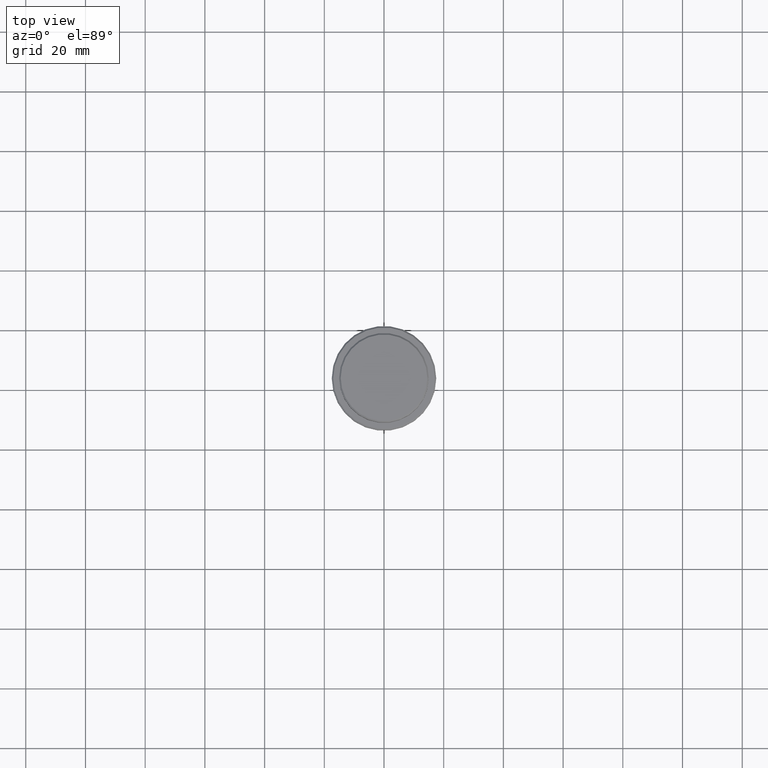
[diagram: clean part render]
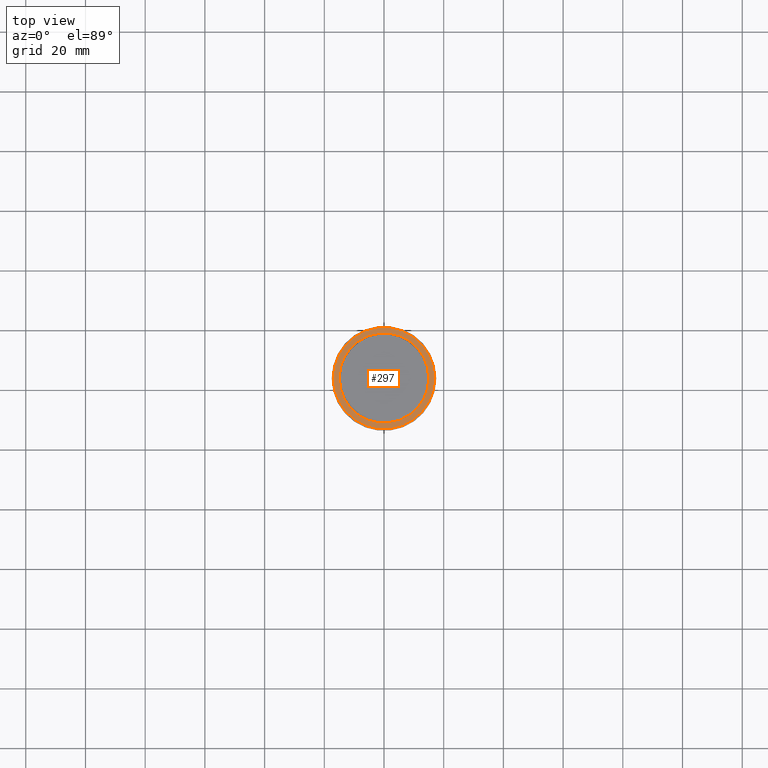
[diagram: same view with one face highlighted and labeled with its STEP entity id]
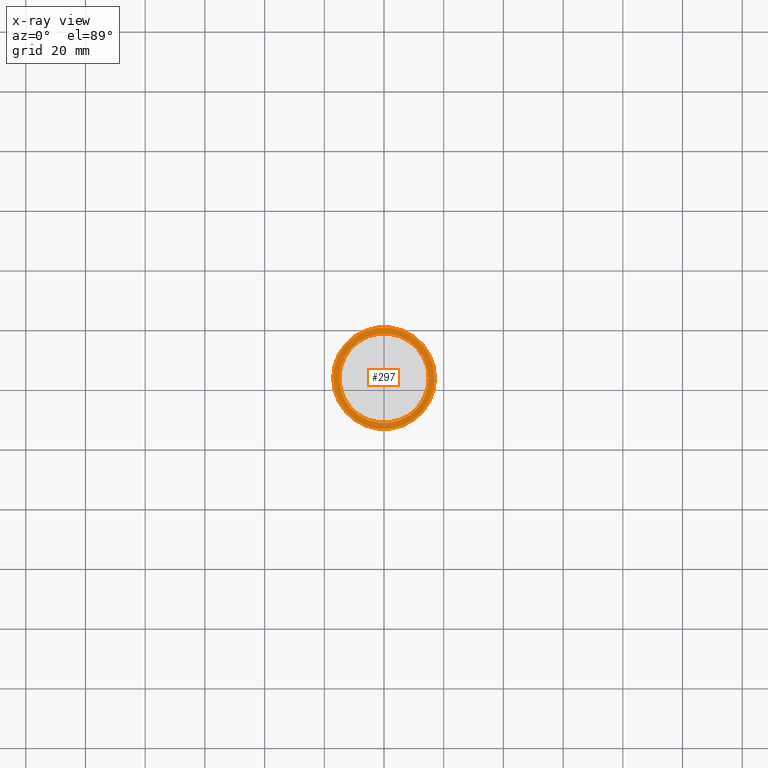
[diagram: x-ray of the same camera — body ghosted, the highlighted face saturated]
A machine part, top view. The second image highlights one B-rep face of the part: STEP entity #297.
The next image is the same camera in x-ray: the body ghosted, the highlighted face saturated — about 0% of this face is hidden behind the body in this view.
In plain terms, the highlighted planar face has unit normal (0, -0, 1).
Its self-contained STEP definition (entity closure, byte-faithful):
#17 = ORIENTED_EDGE ( 'NONE', *, *, #28, .T. ) ;
#28 = EDGE_CURVE ( 'NONE', #994, #574, #762, .T. ) ;
#30 = EDGE_LOOP ( 'NONE', ( #483, #17 ) ) ;
#51 = CIRCLE ( 'NONE', #848, 14.99999999999999467 ) ;
#53 = CARTESIAN_POINT ( 'NONE',  ( 0.000000000000000000, 0.000000000000000000, -9.000000000000001776 ) ) ;
#67 = CARTESIAN_POINT ( 'NONE',  ( 0.000000000000000000, 0.000000000000000000, -9.000000000000001776 ) ) ;
#72 = AXIS2_PLACEMENT_3D ( 'NONE', #67, #79, #281 ) ;
#79 = DIRECTION ( 'NONE',  ( 0.000000000000000000, 0.000000000000000000, -1.000000000000000000 ) ) ;
#169 = AXIS2_PLACEMENT_3D ( 'NONE', #563, #650, #1307 ) ;
#172 = DIRECTION ( 'NONE',  ( -0.000000000000000000, -0.000000000000000000, 1.000000000000000000 ) ) ;
#200 = CARTESIAN_POINT ( 'NONE',  ( 0.000000000000000000, 0.000000000000000000, -9.000000000000001776 ) ) ;
#220 = PLANE ( 'NONE',  #169 ) ;
#281 = DIRECTION ( 'NONE',  ( 1.000000000000000000, 0.000000000000000000, 0.000000000000000000 ) ) ;
#297 = ADVANCED_FACE ( 'NONE', ( #330, #1085 ), #220, .T. ) ;
#311 = AXIS2_PLACEMENT_3D ( 'NONE', #200, #637, #1134 ) ;
#330 = FACE_OUTER_BOUND ( 'NONE', #30, .T. ) ;
#378 = EDGE_CURVE ( 'NONE', #1243, #819, #51, .T. ) ;
#383 = DIRECTION ( 'NONE',  ( 0.000000000000000000, 0.000000000000000000, -1.000000000000000000 ) ) ;
#391 = CARTESIAN_POINT ( 'NONE',  ( 0.000000000000000000, 0.000000000000000000, -9.000000000000001776 ) ) ;
#421 = CIRCLE ( 'NONE', #72, 14.99999999999999467 ) ;
#454 = ORIENTED_EDGE ( 'NONE', *, *, #378, .T. ) ;
#483 = ORIENTED_EDGE ( 'NONE', *, *, #1255, .T. ) ;
#545 = CARTESIAN_POINT ( 'NONE',  ( -14.99999999999999467, 1.836970198721029194E-15, -9.000000000000001776 ) ) ;
#563 = CARTESIAN_POINT ( 'NONE',  ( 0.000000000000000000, 14.49999999999999467, -9.000000000000001776 ) ) ;
#574 = VERTEX_POINT ( 'NONE', #1037 ) ;
#637 = DIRECTION ( 'NONE',  ( -0.000000000000000000, -0.000000000000000000, 1.000000000000000000 ) ) ;
#650 = DIRECTION ( 'NONE',  ( 0.000000000000000000, -0.000000000000000000, 1.000000000000000000 ) ) ;
#762 = CIRCLE ( 'NONE', #1347, 17.00000000000004263 ) ;
#819 = VERTEX_POINT ( 'NONE', #1353 ) ;
#848 = AXIS2_PLACEMENT_3D ( 'NONE', #391, #383, #1137 ) ;
#880 = EDGE_LOOP ( 'NONE', ( #887, #454 ) ) ;
#887 = ORIENTED_EDGE ( 'NONE', *, *, #1024, .T. ) ;
#936 = DIRECTION ( 'NONE',  ( 1.000000000000000000, 0.000000000000000000, 0.000000000000000000 ) ) ;
#994 = VERTEX_POINT ( 'NONE', #1265 ) ;
#1024 = EDGE_CURVE ( 'NONE', #819, #1243, #421, .T. ) ;
#1037 = CARTESIAN_POINT ( 'NONE',  ( -17.00000000000004263, 0.000000000000000000, -9.000000000000001776 ) ) ;
#1085 = FACE_BOUND ( 'NONE', #880, .T. ) ;
#1134 = DIRECTION ( 'NONE',  ( 1.000000000000000000, 0.000000000000000000, 0.000000000000000000 ) ) ;
#1137 = DIRECTION ( 'NONE',  ( 1.000000000000000000, 0.000000000000000000, 0.000000000000000000 ) ) ;
#1243 = VERTEX_POINT ( 'NONE', #545 ) ;
#1255 = EDGE_CURVE ( 'NONE', #574, #994, #1257, .T. ) ;
#1257 = CIRCLE ( 'NONE', #311, 17.00000000000004263 ) ;
#1265 = CARTESIAN_POINT ( 'NONE',  ( 17.00000000000004263, 2.112515728529187222E-15, -9.000000000000001776 ) ) ;
#1307 = DIRECTION ( 'NONE',  ( 1.000000000000000000, 0.000000000000000000, 0.000000000000000000 ) ) ;
#1347 = AXIS2_PLACEMENT_3D ( 'NONE', #53, #172, #936 ) ;
#1353 = CARTESIAN_POINT ( 'NONE',  ( 14.99999999999999467, 0.000000000000000000, -9.000000000000001776 ) ) ;